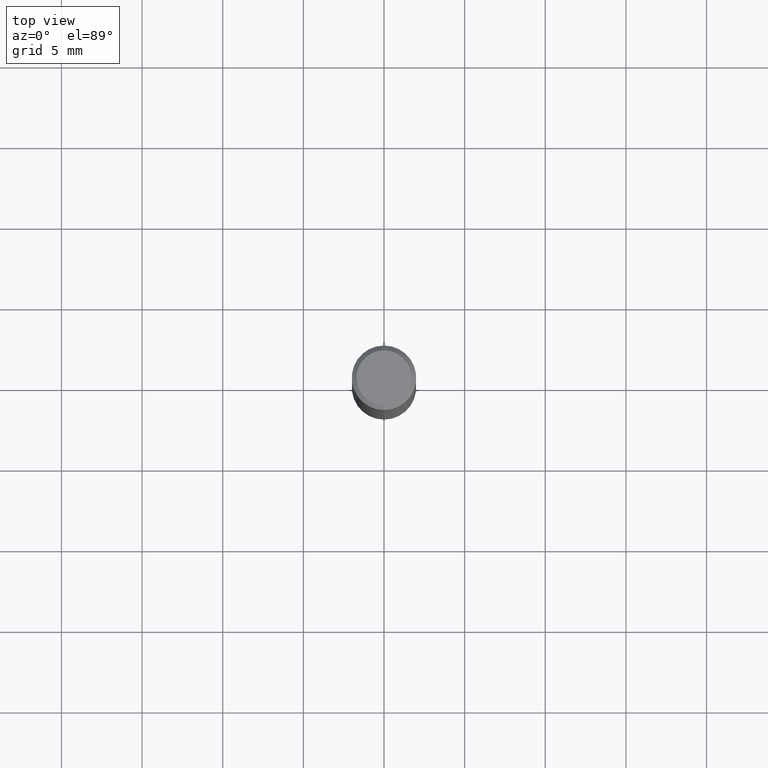
[diagram: clean part render]
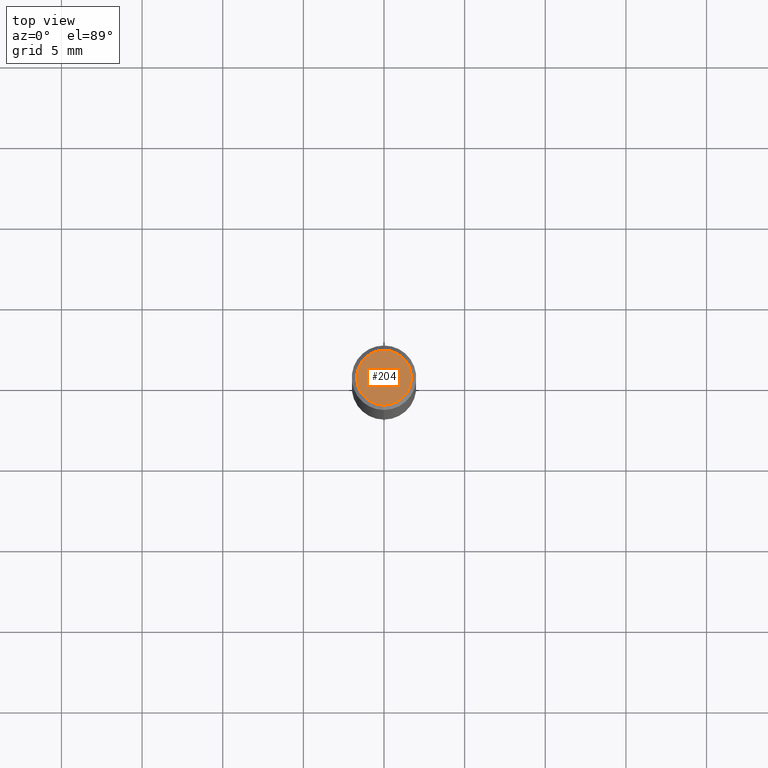
[diagram: same view with one face highlighted and labeled with its STEP entity id]
A machine part, top view. The second image highlights one B-rep face of the part: STEP entity #204.
In plain terms, the highlighted planar face has unit normal (-0, 0, 1).
Its self-contained STEP definition (entity closure, byte-faithful):
#100=EDGE_CURVE('',#198,#178,#241,.T.);
#178=VERTEX_POINT('',#329);
#182=EDGE_CURVE('',#178,#198,#333,.T.);
#198=VERTEX_POINT('',#351);
#204=ADVANCED_FACE('',(#358),#359,.T.);
#241=CIRCLE('',#395,1.7);
#329=CARTESIAN_POINT('',(2.08183080149804E-016,-1.7,0.0));
#333=CIRCLE('',#510,1.7);
#351=CARTESIAN_POINT('',(0.0,1.7,0.0));
#358=FACE_OUTER_BOUND('',#541,.T.);
#359=PLANE('',#542);
#395=AXIS2_PLACEMENT_3D('',#563,#564,#565);
#510=AXIS2_PLACEMENT_3D('',#684,#685,#686);
#541=EDGE_LOOP('',(#712,#713));
#542=AXIS2_PLACEMENT_3D('',#714,#715,#716);
#563=CARTESIAN_POINT('',(0.0,0.0,0.0));
#564=DIRECTION('',(0.0,0.0,-1.0));
#565=DIRECTION('',(0.0,1.0,0.0));
#684=CARTESIAN_POINT('',(0.0,0.0,0.0));
#685=DIRECTION('',(0.0,0.0,-1.0));
#686=DIRECTION('',(0.0,1.0,0.0));
#712=ORIENTED_EDGE('',*,*,#100,.F.);
#713=ORIENTED_EDGE('',*,*,#182,.F.);
#714=CARTESIAN_POINT('',(0.0,0.85,0.0));
#715=DIRECTION('',(-0.0,0.0,1.0));
#716=DIRECTION('',(0.0,-1.0,0.0));